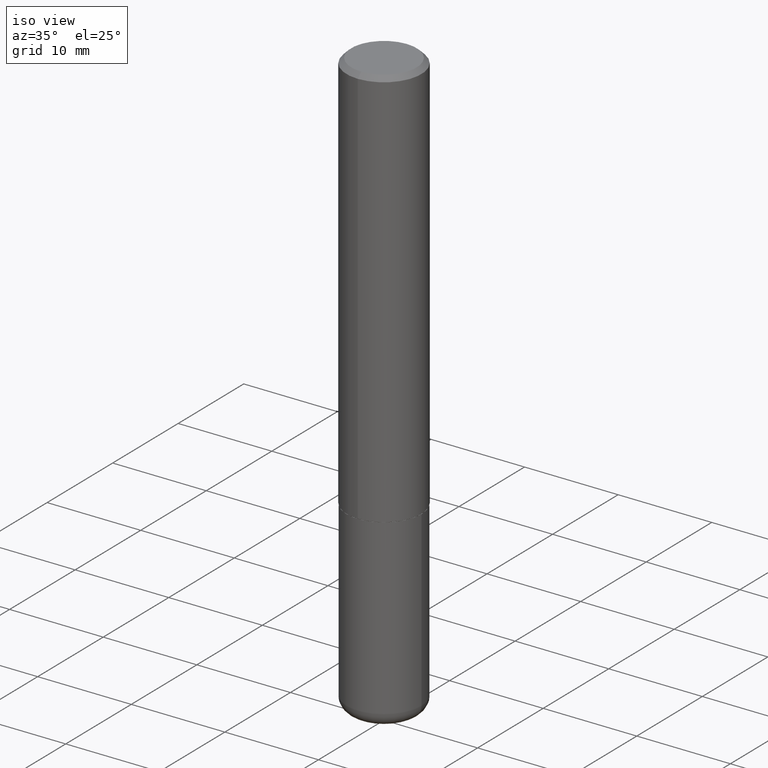
[diagram: clean part render]
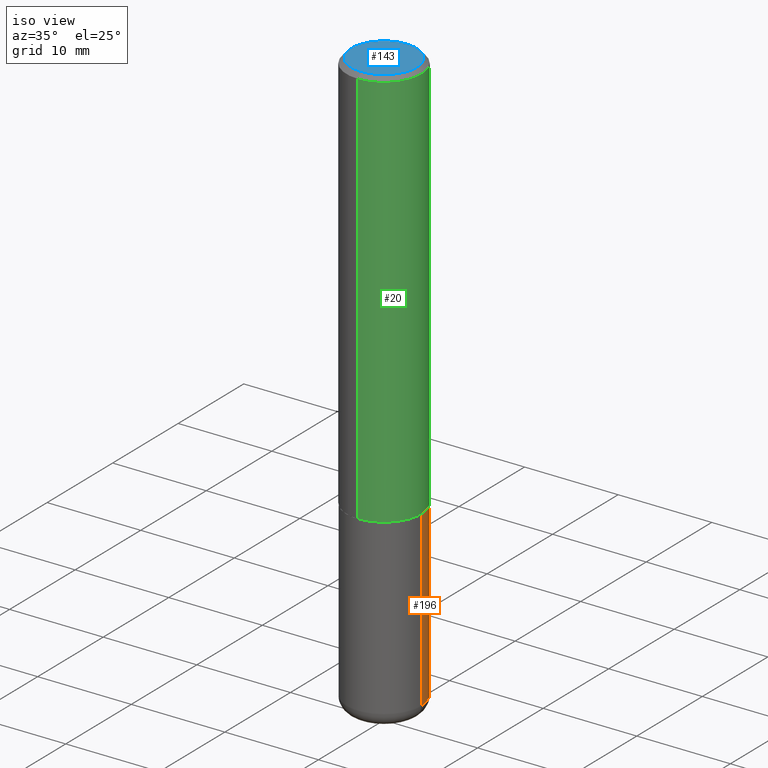
[diagram: same view with three faces highlighted in distinct colors, each labeled with its STEP entity id]
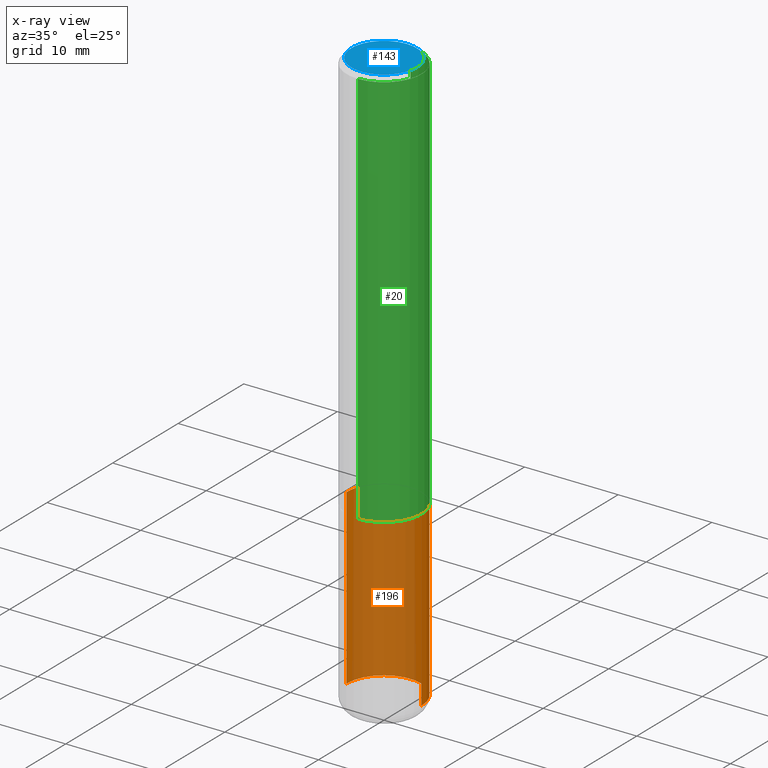
[diagram: x-ray of the same camera — body ghosted, the three highlighted faces saturated]
A machine part, iso view with three faces highlighted in distinct colors.
The next image is the same camera in x-ray (body ghosted, the three faces saturated) — at least one of them is partly hidden behind the body in this view.
Their STEP definitions:

[orange] entity #196 — the highlighted cylindrical surface (partial cylindrical patch) has radius 4.0005 mm, axis along (-0, 0, 1).
#9 = AXIS2_PLACEMENT_3D ( 'NONE', #332, #53, #176 ) ;
#25 = VERTEX_POINT ( 'NONE', #342 ) ;
#26 = VERTEX_POINT ( 'NONE', #352 ) ;
#43 = CARTESIAN_POINT ( 'NONE',  ( 0.000000000000000000, 0.000000000000000000, 0.000000000000000000 ) ) ;
#45 = ORIENTED_EDGE ( 'NONE', *, *, #336, .T. ) ;
#47 = DIRECTION ( 'NONE',  ( -2.445468806185136597E-29, 3.491481338843145583E-15, 1.000000000000000000 ) ) ;
#53 = DIRECTION ( 'NONE',  ( -2.445468806185136597E-29, 3.491481338843145583E-15, 1.000000000000000000 ) ) ;
#75 = VECTOR ( 'NONE', #300, 39.37007874015748143 ) ;
#76 = CYLINDRICAL_SURFACE ( 'NONE', #215, 0.1575000000000000289 ) ;
#81 = CARTESIAN_POINT ( 'NONE',  ( 4.139934141990818918E-29, -5.910728758527562653E-15, -1.692900000000000293 ) ) ;
#87 = LINE ( 'NONE', #276, #75 ) ;
#107 = FACE_OUTER_BOUND ( 'NONE', #335, .T. ) ;
#124 = EDGE_CURVE ( 'NONE', #25, #169, #145, .T. ) ;
#132 = DIRECTION ( 'NONE',  ( 1.000000000000000000, -6.982962677686267499E-15, 4.876176775795935232E-29 ) ) ;
#138 = DIRECTION ( 'NONE',  ( 1.000000000000000000, -6.982962677686268288E-15, 0.000000000000000000 ) ) ;
#145 = CIRCLE ( 'NONE', #310, 0.1575000000000000011 ) ;
#149 = VERTEX_POINT ( 'NONE', #265 ) ;
#153 = CIRCLE ( 'NONE', #9, 0.1575000000000000289 ) ;
#169 = VERTEX_POINT ( 'NONE', #295 ) ;
#176 = DIRECTION ( 'NONE',  ( 1.000000000000000000, -6.982962677686267499E-15, 0.000000000000000000 ) ) ;
#196 = ADVANCED_FACE ( 'NONE', ( #107 ), #76, .T. ) ;
#205 = ORIENTED_EDGE ( 'NONE', *, *, #124, .F. ) ;
#212 = EDGE_CURVE ( 'NONE', #149, #169, #292, .T. ) ;
#215 = AXIS2_PLACEMENT_3D ( 'NONE', #43, #353, #132 ) ;
#233 = DIRECTION ( 'NONE',  ( -2.445468806185136877E-29, 3.491481338843145188E-15, 1.000000000000000000 ) ) ;
#261 = CARTESIAN_POINT ( 'NONE',  ( -0.1575000000000000289, 1.119104808822157998E-15, -7.747322767151478386E-30 ) ) ;
#265 = CARTESIAN_POINT ( 'NONE',  ( -0.1575000000000000011, -7.334469808784867333E-15, -2.421200000000000241 ) ) ;
#276 = CARTESIAN_POINT ( 'NONE',  ( 0.1575000000000000289, -1.099816621735587283E-15, 7.679978421878599434E-30 ) ) ;
#292 = LINE ( 'NONE', #261, #326 ) ;
#295 = CARTESIAN_POINT ( 'NONE',  ( -0.1575000000000000011, -6.063046879245136191E-15, -1.692900000000000293 ) ) ;
#300 = DIRECTION ( 'NONE',  ( -2.445468806185136877E-29, 3.491481338843145188E-15, 1.000000000000000000 ) ) ;
#310 = AXIS2_PLACEMENT_3D ( 'NONE', #81, #47, #138 ) ;
#313 = EDGE_CURVE ( 'NONE', #26, #25, #87, .T. ) ;
#326 = VECTOR ( 'NONE', #233, 39.37007874015748143 ) ;
#329 = ORIENTED_EDGE ( 'NONE', *, *, #212, .T. ) ;
#332 = CARTESIAN_POINT ( 'NONE',  ( 5.920969073535453422E-29, -8.453574617607024936E-15, -2.421200000000000241 ) ) ;
#335 = EDGE_LOOP ( 'NONE', ( #45, #329, #205, #405 ) ) ;
#336 = EDGE_CURVE ( 'NONE', #26, #149, #153, .T. ) ;
#342 = CARTESIAN_POINT ( 'NONE',  ( 0.1575000000000000011, -7.010545380263150133E-15, -1.692900000000000293 ) ) ;
#352 = CARTESIAN_POINT ( 'NONE',  ( 0.1575000000000000011, -9.553391239342613205E-15, -2.421200000000000241 ) ) ;
#353 = DIRECTION ( 'NONE',  ( -2.445468806185136597E-29, 3.491481338843145583E-15, 1.000000000000000000 ) ) ;
#405 = ORIENTED_EDGE ( 'NONE', *, *, #313, .F. ) ;

[blue] entity #143 — the highlighted planar face has unit normal (0, -0, -1).
#59 = AXIS2_PLACEMENT_3D ( 'NONE', #230, #106, #231 ) ;
#74 = CARTESIAN_POINT ( 'NONE',  ( 1.029986994958724774E-15, 0.1375000000000000944, -5.398378589523385849E-16 ) ) ;
#82 = VERTEX_POINT ( 'NONE', #74 ) ;
#98 = ORIENTED_EDGE ( 'NONE', *, *, #192, .T. ) ;
#99 = CIRCLE ( 'NONE', #187, 0.1375000000000000944 ) ;
#102 = DIRECTION ( 'NONE',  ( -2.446894125154584110E-29, 3.489440200954778984E-15, 1.000000000000000000 ) ) ;
#106 = DIRECTION ( 'NONE',  ( -2.446894125154584110E-29, 3.489440200954778984E-15, 1.000000000000000000 ) ) ;
#131 = CARTESIAN_POINT ( 'NONE',  ( 9.601573681818622643E-16, 0.1375000000000000944, -5.098179432918105990E-16 ) ) ;
#134 = CIRCLE ( 'NONE', #59, 0.1375000000000000944 ) ;
#143 = ADVANCED_FACE ( 'NONE', ( #202 ), #228, .F. ) ;
#168 = DIRECTION ( 'NONE',  ( 6.982962677686265922E-15, 1.000000000000000000, -3.489440200954778984E-15 ) ) ;
#187 = AXIS2_PLACEMENT_3D ( 'NONE', #392, #102, #397 ) ;
#192 = EDGE_CURVE ( 'NONE', #82, #318, #99, .T. ) ;
#202 = FACE_OUTER_BOUND ( 'NONE', #232, .T. ) ;
#219 = EDGE_CURVE ( 'NONE', #318, #82, #134, .T. ) ;
#228 = PLANE ( 'NONE',  #387 ) ;
#230 = CARTESIAN_POINT ( 'NONE',  ( 1.469111105347644946E-45, -2.095054010702372216E-31, -6.003983132105615665E-17 ) ) ;
#231 = DIRECTION ( 'NONE',  ( -6.982962677686265922E-15, -1.000000000000000000, 3.489440200954779378E-15 ) ) ;
#232 = EDGE_LOOP ( 'NONE', ( #98, #286 ) ) ;
#286 = ORIENTED_EDGE ( 'NONE', *, *, #219, .T. ) ;
#301 = CARTESIAN_POINT ( 'NONE',  ( -1.011923454671301040E-15, -0.1375000000000000944, 4.197581963102262963E-16 ) ) ;
#318 = VERTEX_POINT ( 'NONE', #301 ) ;
#322 = DIRECTION ( 'NONE',  ( 2.446894125154583830E-29, -3.489440200954778984E-15, -1.000000000000000000 ) ) ;
#387 = AXIS2_PLACEMENT_3D ( 'NONE', #131, #322, #168 ) ;
#392 = CARTESIAN_POINT ( 'NONE',  ( 1.469111105347644946E-45, -2.095054010702372216E-31, -6.003983132105615665E-17 ) ) ;
#397 = DIRECTION ( 'NONE',  ( -6.982962677686265922E-15, -1.000000000000000000, 3.489440200954779378E-15 ) ) ;

[green] entity #20 — the highlighted cylindrical surface (partial cylindrical patch) has radius 4.0005 mm, axis along (-0, 0, 1).
#2 = DIRECTION ( 'NONE',  ( -2.446894125154584110E-29, 3.489440200954778984E-15, 1.000000000000000000 ) ) ;
#4 = VERTEX_POINT ( 'NONE', #344 ) ;
#7 = EDGE_CURVE ( 'NONE', #127, #4, #14, .T. ) ;
#8 = AXIS2_PLACEMENT_3D ( 'NONE', #252, #2, #186 ) ;
#14 = CIRCLE ( 'NONE', #128, 0.1575000000000002232 ) ;
#16 = ORIENTED_EDGE ( 'NONE', *, *, #36, .F. ) ;
#19 = CARTESIAN_POINT ( 'NONE',  ( -1.080528434649015779E-15, -0.1575000000000000844, -0.01999999999999948347 ) ) ;
#20 = ADVANCED_FACE ( 'NONE', ( #416 ), #184, .T. ) ;
#22 = VECTOR ( 'NONE', #391, 39.37007874015748143 ) ;
#36 = EDGE_CURVE ( 'NONE', #238, #249, #413, .T. ) ;
#63 = CARTESIAN_POINT ( 'NONE',  ( 4.139900170349041117E-29, -5.903783875995391742E-15, -1.691900000000000404 ) ) ;
#67 = AXIS2_PLACEMENT_3D ( 'NONE', #259, #281, #123 ) ;
#78 = LINE ( 'NONE', #80, #22 ) ;
#80 = CARTESIAN_POINT ( 'NONE',  ( 1.119104808822158392E-15, 0.1575000000000001399, -5.495868316503780705E-16 ) ) ;
#121 = ORIENTED_EDGE ( 'NONE', *, *, #7, .T. ) ;
#123 = DIRECTION ( 'NONE',  ( -6.982962677686265133E-15, -1.000000000000000000, 3.489440200954778195E-15 ) ) ;
#127 = VERTEX_POINT ( 'NONE', #320 ) ;
#128 = AXIS2_PLACEMENT_3D ( 'NONE', #63, #220, #254 ) ;
#135 = EDGE_CURVE ( 'NONE', #127, #238, #194, .T. ) ;
#151 = EDGE_CURVE ( 'NONE', #4, #249, #78, .T. ) ;
#165 = DIRECTION ( 'NONE',  ( -2.446894125154584390E-29, 3.489440200954778984E-15, 1.000000000000000000 ) ) ;
#184 = CYLINDRICAL_SURFACE ( 'NONE', #67, 0.1575000000000001399 ) ;
#186 = DIRECTION ( 'NONE',  ( -6.982962677686264344E-15, -1.000000000000000000, 3.496114991891764787E-15 ) ) ;
#194 = LINE ( 'NONE', #290, #221 ) ;
#207 = ORIENTED_EDGE ( 'NONE', *, *, #135, .F. ) ;
#211 = CARTESIAN_POINT ( 'NONE',  ( 1.099816621735587480E-15, 0.1574999999999999456, -0.02000000000000058328 ) ) ;
#220 = DIRECTION ( 'NONE',  ( -2.446894125154584110E-29, 3.489440200954778984E-15, 1.000000000000000000 ) ) ;
#221 = VECTOR ( 'NONE', #165, 39.37007874015748143 ) ;
#238 = VERTEX_POINT ( 'NONE', #19 ) ;
#249 = VERTEX_POINT ( 'NONE', #211 ) ;
#252 = CARTESIAN_POINT ( 'NONE',  ( 4.893788250309175717E-31, -6.978880401909569159E-17, -0.02000000000000003511 ) ) ;
#254 = DIRECTION ( 'NONE',  ( -6.982962677686265922E-15, -1.000000000000000000, 3.469013325287948560E-15 ) ) ;
#259 = CARTESIAN_POINT ( 'NONE',  ( 0.000000000000000000, 0.000000000000000000, 0.000000000000000000 ) ) ;
#281 = DIRECTION ( 'NONE',  ( -2.446894125154584110E-29, 3.489440200954778984E-15, 1.000000000000000000 ) ) ;
#290 = CARTESIAN_POINT ( 'NONE',  ( -1.099816621735587677E-15, -0.1575000000000001399, 5.495868316503780705E-16 ) ) ;
#299 = ORIENTED_EDGE ( 'NONE', *, *, #151, .T. ) ;
#320 = CARTESIAN_POINT ( 'NONE',  ( -1.099816621735546854E-15, -0.1575000000000061351, -1.691899999999999737 ) ) ;
#344 = CARTESIAN_POINT ( 'NONE',  ( 1.119104808822179494E-15, 0.1574999999999943112, -1.691900000000000848 ) ) ;
#383 = EDGE_LOOP ( 'NONE', ( #121, #299, #16, #207 ) ) ;
#391 = DIRECTION ( 'NONE',  ( -2.446894125154584390E-29, 3.489440200954778984E-15, 1.000000000000000000 ) ) ;
#413 = CIRCLE ( 'NONE', #8, 0.1575000000000000289 ) ;
#416 = FACE_OUTER_BOUND ( 'NONE', #383, .T. ) ;